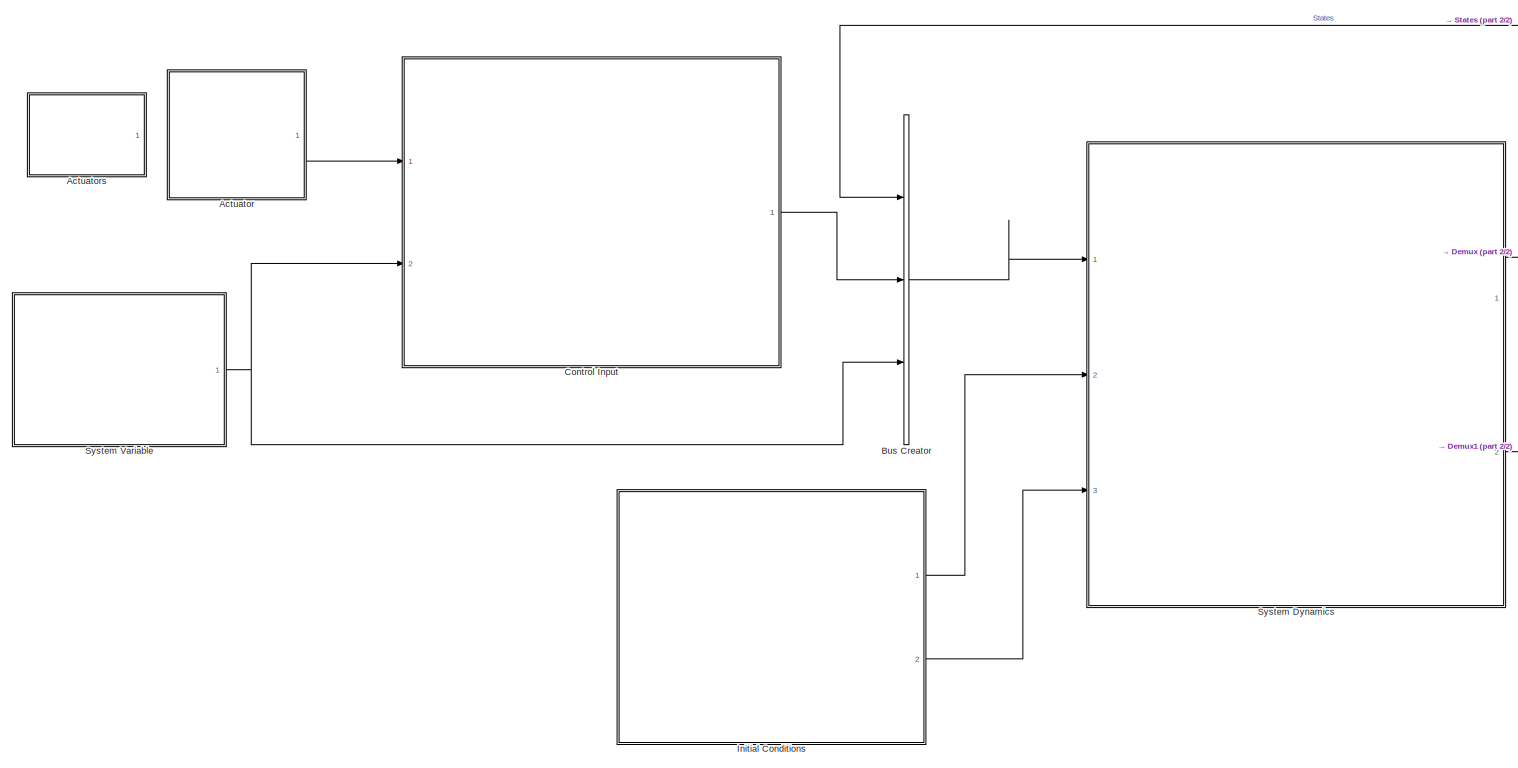
[diagram: root canvas - part 1/2, most of the canvas]
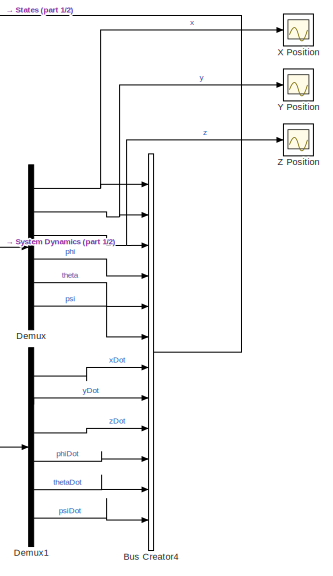
[diagram: root canvas - part 2/2, middle right region]
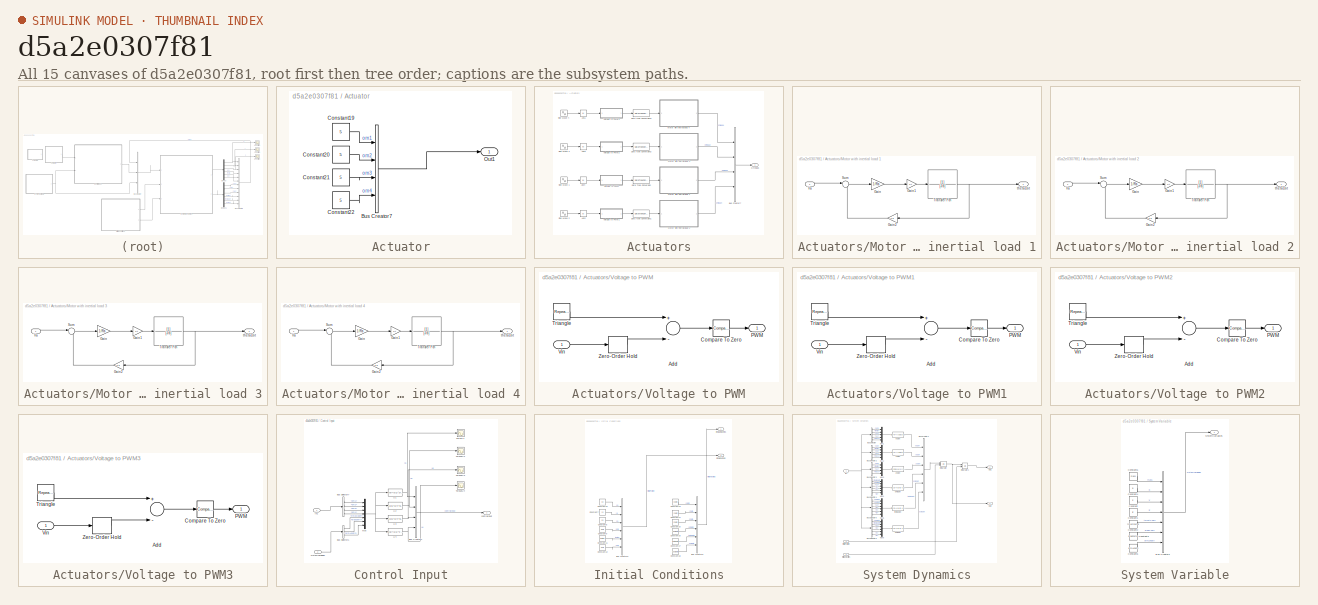
[diagram: thumbnail index - all 15 canvases of the model, root first then tree order]
MODEL slx_d5a2e0307f81
KIND model
CONFIG AbsTol = auto
CONFIG EnableMultiTasking = off
CONFIG FixedStep = auto
CONFIG MaxStep = auto
CONFIG MinStep = auto
CONFIG RelTol = 1e-3
CONFIG SampleTimeConstraint = Unconstrained
CONFIG Solver = VariableStepAuto
CONFIG SolverName = VariableStepAuto
CONFIG StartTime = 0.0
CONFIG StopTime = 5.0
BLOCK [SubSystem] Actuator
  Ports = [0, 1]
  RequestExecContextInheritance = off
BLOCK [BusCreator] Actuator/Bus Creator7
  DisplayOption = bar
  InheritFromInputs = on
  Inputs = 4
  Ports = [4, 1]
BLOCK [Constant] Actuator/Constant19
  Value = 5
BLOCK [Constant] Actuator/Constant20
  Value = 5
BLOCK [Constant] Actuator/Constant21
  Value = 5
BLOCK [Constant] Actuator/Constant22
  Value = 5
BLOCK [Outport] Actuator/Out1
  IconDisplay = Port number
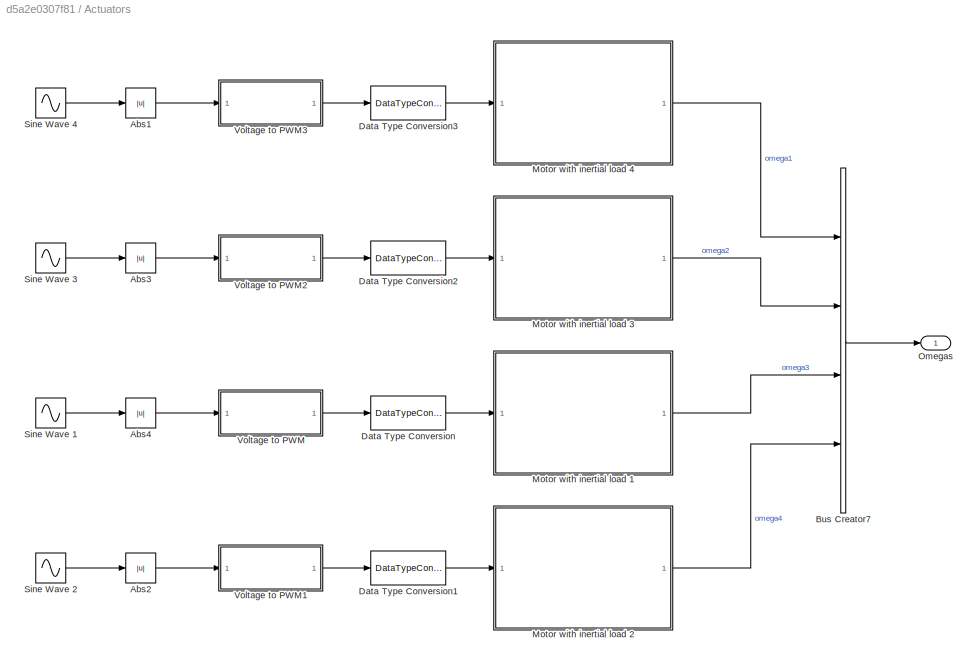
BLOCK [SubSystem] Actuators
  Commented = on
  Ports = [0, 1]
  RequestExecContextInheritance = off
BLOCK [Abs] Actuators/Abs1
  SaturateOnIntegerOverflow = off
BLOCK [Abs] Actuators/Abs2
  SaturateOnIntegerOverflow = off
BLOCK [Abs] Actuators/Abs3
  SaturateOnIntegerOverflow = off
BLOCK [Abs] Actuators/Abs4
  SaturateOnIntegerOverflow = off
BLOCK [BusCreator] Actuators/Bus Creator7
  DisplayOption = bar
  InheritFromInputs = on
  Inputs = 4
  Ports = [4, 1]
BLOCK [DataTypeConversion] Actuators/Data Type Conversion
  OutDataTypeStr = double
  RndMeth = Floor
  SaturateOnIntegerOverflow = off
BLOCK [DataTypeConversion] Actuators/Data Type Conversion1
  OutDataTypeStr = double
  RndMeth = Floor
  SaturateOnIntegerOverflow = off
BLOCK [DataTypeConversion] Actuators/Data Type Conversion2
  OutDataTypeStr = double
  RndMeth = Floor
  SaturateOnIntegerOverflow = off
BLOCK [DataTypeConversion] Actuators/Data Type Conversion3
  OutDataTypeStr = double
  RndMeth = Floor
  SaturateOnIntegerOverflow = off
BLOCK [SubSystem] Actuators/Motor with inertial load 1
  Ports = [1, 1]
  RequestExecContextInheritance = off
BLOCK [Gain] Actuators/Motor with inertial load 1/Gain
  Gain = 1/Ra
  OutDataTypeStr = Inherit: Inherit via internal rule
  ParamDataTypeStr = Inherit: Inherit via internal rule
  SaturateOnIntegerOverflow = off
BLOCK [Gain] Actuators/Motor with inertial load 1/Gain1
  Gain = Kt
  OutDataTypeStr = Inherit: Inherit via internal rule
  ParamDataTypeStr = Inherit: Inherit via internal rule
  SaturateOnIntegerOverflow = off
BLOCK [Gain] Actuators/Motor with inertial load 1/Gain2
  Gain = Ke
  OutDataTypeStr = Inherit: Inherit via internal rule
  ParamDataTypeStr = Inherit: Inherit via internal rule
  SaturateOnIntegerOverflow = off
BLOCK [Sum] Actuators/Motor with inertial load 1/Sum
  IconShape = round
  InputSameDT = off
  Inputs = |+-
  OutDataTypeStr = Inherit: Inherit via internal rule
  Ports = [2, 1]
  SaturateOnIntegerOverflow = off
BLOCK [TransferFcn] Actuators/Motor with inertial load 1/Transfer Fcn
  Denominator = [J b]
BLOCK [Inport] Actuators/Motor with inertial load 1/Va
  IconDisplay = Port number
BLOCK [Outport] Actuators/Motor with inertial load 1/thetaDot
  IconDisplay = Port number
BLOCK [SubSystem] Actuators/Motor with inertial load 2
  Ports = [1, 1]
  RequestExecContextInheritance = off
BLOCK [Gain] Actuators/Motor with inertial load 2/Gain
  Gain = 1/Ra
  OutDataTypeStr = Inherit: Inherit via internal rule
  ParamDataTypeStr = Inherit: Inherit via internal rule
  SaturateOnIntegerOverflow = off
BLOCK [Gain] Actuators/Motor with inertial load 2/Gain1
  Gain = Kt
  OutDataTypeStr = Inherit: Inherit via internal rule
  ParamDataTypeStr = Inherit: Inherit via internal rule
  SaturateOnIntegerOverflow = off
BLOCK [Gain] Actuators/Motor with inertial load 2/Gain2
  Gain = Ke
  OutDataTypeStr = Inherit: Inherit via internal rule
  ParamDataTypeStr = Inherit: Inherit via internal rule
  SaturateOnIntegerOverflow = off
BLOCK [Sum] Actuators/Motor with inertial load 2/Sum
  IconShape = round
  InputSameDT = off
  Inputs = |+-
  OutDataTypeStr = Inherit: Inherit via internal rule
  Ports = [2, 1]
  SaturateOnIntegerOverflow = off
BLOCK [TransferFcn] Actuators/Motor with inertial load 2/Transfer Fcn
  Denominator = [J b]
BLOCK [Inport] Actuators/Motor with inertial load 2/Va
  IconDisplay = Port number
BLOCK [Outport] Actuators/Motor with inertial load 2/thetaDot
  IconDisplay = Port number
BLOCK [SubSystem] Actuators/Motor with inertial load 3
  Ports = [1, 1]
  RequestExecContextInheritance = off
BLOCK [Gain] Actuators/Motor with inertial load 3/Gain
  Gain = 1/Ra
  OutDataTypeStr = Inherit: Inherit via internal rule
  ParamDataTypeStr = Inherit: Inherit via internal rule
  SaturateOnIntegerOverflow = off
BLOCK [Gain] Actuators/Motor with inertial load 3/Gain1
  Gain = Kt
  OutDataTypeStr = Inherit: Inherit via internal rule
  ParamDataTypeStr = Inherit: Inherit via internal rule
  SaturateOnIntegerOverflow = off
BLOCK [Gain] Actuators/Motor with inertial load 3/Gain2
  Gain = Ke
  OutDataTypeStr = Inherit: Inherit via internal rule
  ParamDataTypeStr = Inherit: Inherit via internal rule
  SaturateOnIntegerOverflow = off
BLOCK [Sum] Actuators/Motor with inertial load 3/Sum
  IconShape = round
  InputSameDT = off
  Inputs = |+-
  OutDataTypeStr = Inherit: Inherit via internal rule
  Ports = [2, 1]
  SaturateOnIntegerOverflow = off
BLOCK [TransferFcn] Actuators/Motor with inertial load 3/Transfer Fcn
  Denominator = [J b]
BLOCK [Inport] Actuators/Motor with inertial load 3/Va
  IconDisplay = Port number
BLOCK [Outport] Actuators/Motor with inertial load 3/thetaDot
  IconDisplay = Port number
BLOCK [SubSystem] Actuators/Motor with inertial load 4
  Ports = [1, 1]
  RequestExecContextInheritance = off
BLOCK [Gain] Actuators/Motor with inertial load 4/Gain
  Gain = 1/Ra
  OutDataTypeStr = Inherit: Inherit via internal rule
  ParamDataTypeStr = Inherit: Inherit via internal rule
  SaturateOnIntegerOverflow = off
BLOCK [Gain] Actuators/Motor with inertial load 4/Gain1
  Gain = Kt
  OutDataTypeStr = Inherit: Inherit via internal rule
  ParamDataTypeStr = Inherit: Inherit via internal rule
  SaturateOnIntegerOverflow = off
BLOCK [Gain] Actuators/Motor with inertial load 4/Gain2
  Gain = Ke
  OutDataTypeStr = Inherit: Inherit via internal rule
  ParamDataTypeStr = Inherit: Inherit via internal rule
  SaturateOnIntegerOverflow = off
BLOCK [Sum] Actuators/Motor with inertial load 4/Sum
  IconShape = round
  InputSameDT = off
  Inputs = |+-
  OutDataTypeStr = Inherit: Inherit via internal rule
  Ports = [2, 1]
  SaturateOnIntegerOverflow = off
BLOCK [TransferFcn] Actuators/Motor with inertial load 4/Transfer Fcn
  Denominator = [J b]
BLOCK [Inport] Actuators/Motor with inertial load 4/Va
  IconDisplay = Port number
BLOCK [Outport] Actuators/Motor with inertial load 4/thetaDot
  IconDisplay = Port number
BLOCK [Outport] Actuators/Omegas
  IconDisplay = Port number
BLOCK [Sin] Actuators/Sine Wave 1
  Amplitude = 500
  Frequency = 50
  Ports = [0, 1]
  SampleTime = 0
BLOCK [Sin] Actuators/Sine Wave 2
  Amplitude = 500
  Frequency = 50
  Ports = [0, 1]
  SampleTime = 0
BLOCK [Sin] Actuators/Sine Wave 3
  Amplitude = 500
  Frequency = 50
  Ports = [0, 1]
  SampleTime = 0
BLOCK [Sin] Actuators/Sine Wave 4
  Amplitude = 500
  Frequency = 50
  Ports = [0, 1]
  SampleTime = 0
BLOCK [SubSystem] Actuators/Voltage to PWM
  Ports = [1, 1]
  RequestExecContextInheritance = off
BLOCK [Sum] Actuators/Voltage to PWM/Add
  InputSameDT = off
  Inputs = +-
  OutDataTypeStr = Inherit: Inherit via internal rule
  Ports = [2, 1]
  SampleTime = 1/10000
  SaturateOnIntegerOverflow = off
BLOCK [Reference] Actuators/Voltage to PWM/Compare To Zero  REF=simulink/Logic and Bit
Operations/Compare
To Zero
  Ports = [1, 1]
  SourceBlock = simulink/Logic and Bit\nOperations/Compare\nTo Zero
  SourceProductBaseCode = SL
  SourceProductName = Simulink
  SourceType = Compare To Zero
BLOCK [Outport] Actuators/Voltage to PWM/PWM
  IconDisplay = Port number
BLOCK [Reference] Actuators/Voltage to PWM/Triangle  REF=simulink/Sources/Repeating
Sequence
  Ports = [0, 1]
  SourceBlock = simulink/Sources/Repeating\nSequence
  SourceProductBaseCode = SL
  SourceProductName = Simulink
  SourceType = Repeating table
BLOCK [Inport] Actuators/Voltage to PWM/Vin
  IconDisplay = Port number
BLOCK [ZeroOrderHold] Actuators/Voltage to PWM/Zero-Order Hold
  SampleTime = 1/10000
BLOCK [SubSystem] Actuators/Voltage to PWM1
  Ports = [1, 1]
  RequestExecContextInheritance = off
BLOCK [Sum] Actuators/Voltage to PWM1/Add
  InputSameDT = off
  Inputs = +-
  OutDataTypeStr = Inherit: Inherit via internal rule
  Ports = [2, 1]
  SampleTime = 1/10000
  SaturateOnIntegerOverflow = off
BLOCK [Reference] Actuators/Voltage to PWM1/Compare To Zero  REF=simulink/Logic and Bit
Operations/Compare
To Zero
  Ports = [1, 1]
  SourceBlock = simulink/Logic and Bit\nOperations/Compare\nTo Zero
  SourceProductBaseCode = SL
  SourceProductName = Simulink
  SourceType = Compare To Zero
BLOCK [Outport] Actuators/Voltage to PWM1/PWM
  IconDisplay = Port number
BLOCK [Reference] Actuators/Voltage to PWM1/Triangle  REF=simulink/Sources/Repeating
Sequence
  Ports = [0, 1]
  SourceBlock = simulink/Sources/Repeating\nSequence
  SourceProductBaseCode = SL
  SourceProductName = Simulink
  SourceType = Repeating table
BLOCK [Inport] Actuators/Voltage to PWM1/Vin
  IconDisplay = Port number
BLOCK [ZeroOrderHold] Actuators/Voltage to PWM1/Zero-Order Hold
  SampleTime = 1/10000
BLOCK [SubSystem] Actuators/Voltage to PWM2
  Ports = [1, 1]
  RequestExecContextInheritance = off
BLOCK [Sum] Actuators/Voltage to PWM2/Add
  InputSameDT = off
  Inputs = +-
  OutDataTypeStr = Inherit: Inherit via internal rule
  Ports = [2, 1]
  SampleTime = 1/10000
  SaturateOnIntegerOverflow = off
BLOCK [Reference] Actuators/Voltage to PWM2/Compare To Zero  REF=simulink/Logic and Bit
Operations/Compare
To Zero
  Ports = [1, 1]
  SourceBlock = simulink/Logic and Bit\nOperations/Compare\nTo Zero
  SourceProductBaseCode = SL
  SourceProductName = Simulink
  SourceType = Compare To Zero
BLOCK [Outport] Actuators/Voltage to PWM2/PWM
  IconDisplay = Port number
BLOCK [Reference] Actuators/Voltage to PWM2/Triangle  REF=simulink/Sources/Repeating
Sequence
  Ports = [0, 1]
  SourceBlock = simulink/Sources/Repeating\nSequence
  SourceProductBaseCode = SL
  SourceProductName = Simulink
  SourceType = Repeating table
BLOCK [Inport] Actuators/Voltage to PWM2/Vin
  IconDisplay = Port number
BLOCK [ZeroOrderHold] Actuators/Voltage to PWM2/Zero-Order Hold
  SampleTime = 1/10000
BLOCK [SubSystem] Actuators/Voltage to PWM3
  Ports = [1, 1]
  RequestExecContextInheritance = off
BLOCK [Sum] Actuators/Voltage to PWM3/Add
  InputSameDT = off
  Inputs = +-
  OutDataTypeStr = Inherit: Inherit via internal rule
  Ports = [2, 1]
  SampleTime = 1/10000
  SaturateOnIntegerOverflow = off
BLOCK [Reference] Actuators/Voltage to PWM3/Compare To Zero  REF=simulink/Logic and Bit
Operations/Compare
To Zero
  Ports = [1, 1]
  SourceBlock = simulink/Logic and Bit\nOperations/Compare\nTo Zero
  SourceProductBaseCode = SL
  SourceProductName = Simulink
  SourceType = Compare To Zero
BLOCK [Outport] Actuators/Voltage to PWM3/PWM
  IconDisplay = Port number
BLOCK [Reference] Actuators/Voltage to PWM3/Triangle  REF=simulink/Sources/Repeating
Sequence
  Ports = [0, 1]
  SourceBlock = simulink/Sources/Repeating\nSequence
  SourceProductBaseCode = SL
  SourceProductName = Simulink
  SourceType = Repeating table
BLOCK [Inport] Actuators/Voltage to PWM3/Vin
  IconDisplay = Port number
BLOCK [ZeroOrderHold] Actuators/Voltage to PWM3/Zero-Order Hold
  SampleTime = 1/10000
BLOCK [BusCreator] Bus Creator
  DisplayOption = bar
  InheritFromInputs = on
  Inputs = 3
  Ports = [3, 1]
BLOCK [BusCreator] Bus Creator4
  DisplayOption = bar
  InheritFromInputs = on
  Inputs = 12
  Ports = [12, 1]
BLOCK [SubSystem] Control Input
  Ports = [2, 1]
  RequestExecContextInheritance = off
BLOCK [BusCreator] Control Input/Bus Creator1
  DisplayOption = bar
  InheritFromInputs = on
  Inputs = 4
  Ports = [4, 1]
BLOCK [BusSelector] Control Input/Bus Selector1
  OutputAsBus = off
  OutputSignals = thrustCoeff,dragCoeff,armLength
  Ports = [1, 3]
BLOCK [BusSelector] Control Input/Bus Selector7
  OutputAsBus = off
  OutputSignals = om1,om2,om3,om4
  Ports = [1, 4]
BLOCK [Scope] Control Input/ForceU1
  Floating = off
  NumInputPorts = 1
  Ports = [1]
  ScopeSpecificationString = Simulink.scopes.TimeScopeBlockCfg('CurrentConfiguration', extmgr.ConfigurationSet(extmgr.Configuration('Core','General UI',true),extmgr.Configuration('Core','Source UI',true),extmgr.Configuration('Sources','WiredSimulink',true,'DataLoggingVariableName','ScopeData4'),extmgr.Configuration('Visuals','Time Domain',true,'SerializedDisplays',{struct('MinYLimReal','9.00000','MaxYLimReal','11.00000','YLab...<+1392ch>
BLOCK [Inport] Control Input/In1
  IconDisplay = Port number
BLOCK [Mux] Control Input/Mux
  DisplayOption = bar
  Inputs = 7
  Ports = [7, 1]
BLOCK [Scope] Control Input/TorqueU2
  Floating = off
  NumInputPorts = 1
  Ports = [1]
  ScopeSpecificationString = Simulink.scopes.TimeScopeBlockCfg('CurrentConfiguration', extmgr.ConfigurationSet(extmgr.Configuration('Core','General UI',true),extmgr.Configuration('Core','Source UI',true),extmgr.Configuration('Sources','WiredSimulink',true,'DataLoggingVariableName','ScopeData7'),extmgr.Configuration('Visuals','Time Domain',true,'SerializedDisplays',{struct('MinYLimReal','-1.00000','MaxYLimReal','1.00000','YLab...<+1390ch>
BLOCK [Scope] Control Input/TorqueU3
  Floating = off
  NumInputPorts = 1
  Ports = [1]
  ScopeSpecificationString = Simulink.scopes.TimeScopeBlockCfg('CurrentConfiguration', extmgr.ConfigurationSet(extmgr.Configuration('Core','General UI',true),extmgr.Configuration('Core','Source UI',true),extmgr.Configuration('Sources','WiredSimulink',true,'DataLoggingVariableName','ScopeData5'),extmgr.Configuration('Visuals','Time Domain',true,'SerializedDisplays',{struct('MinYLimReal','-1.00000','MaxYLimReal','1.00000','YLab...<+1361ch>
BLOCK [Scope] Control Input/TorqueU4
  Floating = off
  NumInputPorts = 1
  Ports = [1]
  ScopeSpecificationString = Simulink.scopes.TimeScopeBlockCfg('CurrentConfiguration', extmgr.ConfigurationSet(extmgr.Configuration('Core','General UI',true),extmgr.Configuration('Core','Source UI',true),extmgr.Configuration('Sources','WiredSimulink',true,'DataLoggingVariableName','ScopeData6'),extmgr.Configuration('Visuals','Time Domain',true,'SerializedDisplays',{struct('MinYLimReal','-1.00000','MaxYLimReal','1.00000','YLab...<+1361ch>
BLOCK [Fcn] Control Input/U1
  Expr = u(5)*(u(1)^2+u(2)^2+u(3)^2+u(4)^2)
BLOCK [Fcn] Control Input/U2
  Expr = (u(5)*u(7)*sin(pi/4))*(u(1)^2+u(2)^2-u(3)^2-u(4)^2)
BLOCK [Fcn] Control Input/U3
  Expr = (u(5)*u(7)*sin(pi/4))*(u(1)^2-u(2)^2-u(3)^2+u(4)^2)
BLOCK [Fcn] Control Input/U4
  Expr = u(6)*(u(1)^2-u(2)^2+u(3)^2-u(4)^2)
BLOCK [Outport] Control Input/controlInput
  IconDisplay = Port number
BLOCK [Inport] Control Input/systemVariables
  IconDisplay = Port number
  Port = 2
BLOCK [Demux] Demux
  DisplayOption = bar
  Outputs = 6
  Ports = [1, 6]
BLOCK [Demux] Demux1
  DisplayOption = bar
  Outputs = 6
  Ports = [1, 6]
BLOCK [SubSystem] Initial Conditions
  Ports = [0, 2]
  RequestExecContextInheritance = off
BLOCK [BusCreator] Initial Conditions/Bus Creator5
  DisplayOption = bar
  InheritFromInputs = on
  Inputs = 6
  Ports = [6, 1]
BLOCK [BusCreator] Initial Conditions/Bus Creator6
  DisplayOption = bar
  InheritFromInputs = on
  Inputs = 6
  Ports = [6, 1]
BLOCK [Constant] Initial Conditions/Constant10
  Value = x0
BLOCK [Constant] Initial Conditions/Constant11
  Value = theta0
BLOCK [Constant] Initial Conditions/Constant12
  Value = psi0
BLOCK [Constant] Initial Conditions/Constant13
  Value = xDot0
BLOCK [Constant] Initial Conditions/Constant14
  Value = yDot0
BLOCK [Constant] Initial Conditions/Constant15
  Value = zDot0
BLOCK [Constant] Initial Conditions/Constant16
  Value = phiDot0
BLOCK [Constant] Initial Conditions/Constant17
  Value = thetaDot0
BLOCK [Constant] Initial Conditions/Constant18
  Value = psiDot0
BLOCK [Constant] Initial Conditions/Constant7
  Value = y0
BLOCK [Constant] Initial Conditions/Constant8
  Value = z0
BLOCK [Constant] Initial Conditions/Constant9
  Value = phi0
BLOCK [Outport] Initial Conditions/initialPosition
  IconDisplay = Port number
  Port = 2
BLOCK [Outport] Initial Conditions/initialVelocities
  IconDisplay = Port number
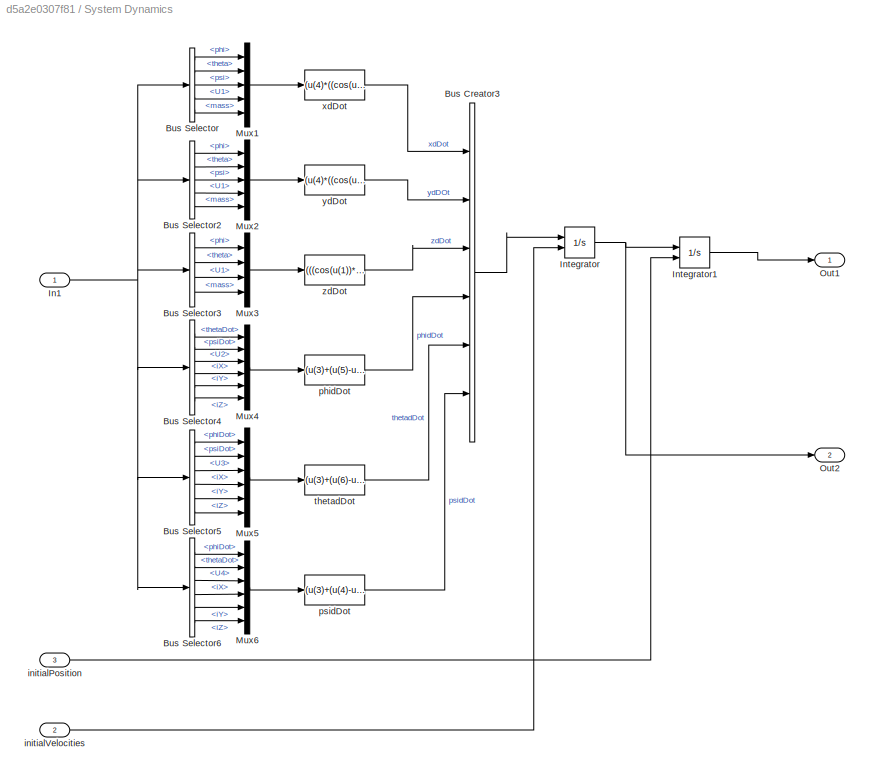
BLOCK [SubSystem] System Dynamics
  Ports = [3, 2]
  RequestExecContextInheritance = off
BLOCK [BusCreator] System Dynamics/Bus Creator3
  DisplayOption = bar
  InheritFromInputs = on
  Inputs = 6
  Ports = [6, 1]
BLOCK [BusSelector] System Dynamics/Bus Selector
  OutputAsBus = off
  OutputSignals = States.phi,States.theta,States.psi,controlInput.U1,systemVariables.mass
  Ports = [1, 5]
BLOCK [BusSelector] System Dynamics/Bus Selector2
  OutputAsBus = off
  OutputSignals = States.phi,States.theta,States.psi,controlInput.U1,systemVariables.mass
  Ports = [1, 5]
BLOCK [BusSelector] System Dynamics/Bus Selector3
  OutputAsBus = off
  OutputSignals = States.phi,States.theta,controlInput.U1,systemVariables.mass
  Ports = [1, 4]
BLOCK [BusSelector] System Dynamics/Bus Selector4
  OutputAsBus = off
  OutputSignals = States.thetaDot,States.psiDot,controlInput.U2,systemVariables.iX,systemVariables.iY,systemVariables.iZ
  Ports = [1, 6]
BLOCK [BusSelector] System Dynamics/Bus Selector5
  OutputAsBus = off
  OutputSignals = States.phiDot,States.psiDot,controlInput.U3,systemVariables.iX,systemVariables.iY,systemVariables.iZ
  Ports = [1, 6]
BLOCK [BusSelector] System Dynamics/Bus Selector6
  OutputAsBus = off
  OutputSignals = States.phiDot,States.thetaDot,controlInput.U4,systemVariables.iX,systemVariables.iY,systemVariables.iZ
  Ports = [1, 6]
BLOCK [Inport] System Dynamics/In1
  IconDisplay = Port number
BLOCK [Integrator] System Dynamics/Integrator
  InitialConditionSource = external
  Ports = [2, 1]
BLOCK [Integrator] System Dynamics/Integrator1
  InitialConditionSource = external
  Ports = [2, 1]
BLOCK [Mux] System Dynamics/Mux1
  DisplayOption = bar
  Inputs = 5
  Ports = [5, 1]
BLOCK [Mux] System Dynamics/Mux2
  DisplayOption = bar
  Inputs = 5
  Ports = [5, 1]
BLOCK [Mux] System Dynamics/Mux3
  DisplayOption = bar
  Ports = [4, 1]
BLOCK [Mux] System Dynamics/Mux4
  DisplayOption = bar
  Inputs = 6
  Ports = [6, 1]
BLOCK [Mux] System Dynamics/Mux5
  DisplayOption = bar
  Inputs = 6
  Ports = [6, 1]
BLOCK [Mux] System Dynamics/Mux6
  DisplayOption = bar
  Inputs = 6
  Ports = [6, 1]
BLOCK [Outport] System Dynamics/Out1
  IconDisplay = Port number
BLOCK [Outport] System Dynamics/Out2
  IconDisplay = Port number
  Port = 2
BLOCK [Inport] System Dynamics/initialPosition
  IconDisplay = Port number
  Port = 3
BLOCK [Inport] System Dynamics/initialVelocities
  IconDisplay = Port number
  Port = 2
BLOCK [Fcn] System Dynamics/phidDot
  Expr = (u(3)+(u(5)-u(6))*(u(1)*u(2)))/u(4)
BLOCK [Fcn] System Dynamics/psidDot
  Expr = (u(3)+(u(4)-u(5))*(u(1)*u(2)))/u(6)
BLOCK [Fcn] System Dynamics/thetadDot
  Expr = (u(3)+(u(6)-u(4))*(u(1)*u(2)))/u(5)
BLOCK [Fcn] System Dynamics/xdDot
  Expr = (u(4)*((cos(u(1))*sin(u(2))*cos(u(3)))+(sin(u(1))*sin(u(3)))))/u(5)
BLOCK [Fcn] System Dynamics/ydDot
  Expr = (u(4)*((cos(u(1))*sin(u(2))*sin(u(3)))-(sin(u(1))*cos(u(3)))))/u(5)
BLOCK [Fcn] System Dynamics/zdDot
  Expr = (((cos(u(1))*cos(u(2)))*u(3))/u(4))-9.81
BLOCK [SubSystem] System Variable
  Ports = [0, 1]
  RequestExecContextInheritance = off
BLOCK [BusCreator] System Variable/Bus Creator2
  DisplayOption = bar
  InheritFromInputs = on
  Inputs = 7
  Ports = [7, 1]
BLOCK [Constant] System Variable/Constant
  Value = iY
BLOCK [Constant] System Variable/Constant1
  Value = iZ
BLOCK [Constant] System Variable/Constant2
  Value = thrustFactor
BLOCK [Constant] System Variable/Constant3
  Value = dragFactor
BLOCK [Constant] System Variable/Constant4
  Value = iX
BLOCK [Constant] System Variable/Constant5
  Value = armLength
BLOCK [Constant] System Variable/Constant6
  Value = mass
BLOCK [Outport] System Variable/systemVariables
  IconDisplay = Port number
BLOCK [Scope] X Position
  Floating = off
  NumInputPorts = 1
  Ports = [1]
  ScopeSpecificationString = Simulink.scopes.TimeScopeBlockCfg('CurrentConfiguration', extmgr.ConfigurationSet(extmgr.Configuration('Core','General UI',true),extmgr.Configuration('Core','Source UI',true),extmgr.Configuration('Sources','WiredSimulink',true),extmgr.Configuration('Visuals','Time Domain',true,'SerializedDisplays',{struct('MinYLimReal','4.00000','MaxYLimReal','6.00000','YLabelReal','','MinYLimMag','4.00000','MaxYL...<+1348ch>
BLOCK [Scope] Y Position
  Floating = off
  NumInputPorts = 1
  Ports = [1]
  ScopeSpecificationString = Simulink.scopes.TimeScopeBlockCfg('CurrentConfiguration', extmgr.ConfigurationSet(extmgr.Configuration('Core','General UI',true),extmgr.Configuration('Core','Source UI',true),extmgr.Configuration('Sources','WiredSimulink',true,'DataLoggingVariableName','ScopeData1'),extmgr.Configuration('Visuals','Time Domain',true,'SerializedDisplays',{struct('MinYLimReal','4.00000','MaxYLimReal','6.00000','YLabe...<+1358ch>
BLOCK [Scope] Z Position
  Floating = off
  NumInputPorts = 1
  Ports = [1]
  ScopeSpecificationString = Simulink.scopes.TimeScopeBlockCfg('CurrentConfiguration', extmgr.ConfigurationSet(extmgr.Configuration('Core','General UI',true),extmgr.Configuration('Core','Source UI',true),extmgr.Configuration('Sources','WiredSimulink',true,'DataLoggingVariableName','ScopeData2'),extmgr.Configuration('Visuals','Time Domain',true,'SerializedDisplays',{struct('MinYLimReal','-42.79688','MaxYLimReal','435.17188','Y...<+1370ch>
LINE Actuator/Bus Creator7:1 -> Actuator/Out1:1
LINE Actuator/Constant19:1 -> Actuator/Bus Creator7:1
LINE Actuator/Constant20:1 -> Actuator/Bus Creator7:2
LINE Actuator/Constant21:1 -> Actuator/Bus Creator7:3
LINE Actuator/Constant22:1 -> Actuator/Bus Creator7:4
LINE Actuator:1 -> Control Input:1
LINE Actuators/Abs1:1 -> Actuators/Voltage to PWM3:1
LINE Actuators/Abs2:1 -> Actuators/Voltage to PWM1:1
LINE Actuators/Abs3:1 -> Actuators/Voltage to PWM2:1
LINE Actuators/Abs4:1 -> Actuators/Voltage to PWM:1
LINE Actuators/Bus Creator7:1 -> Actuators/Omegas:1
LINE Actuators/Data Type Conversion1:1 -> Actuators/Motor with inertial load 2:1
LINE Actuators/Data Type Conversion2:1 -> Actuators/Motor with inertial load 3:1
LINE Actuators/Data Type Conversion3:1 -> Actuators/Motor with inertial load 4:1
LINE Actuators/Data Type Conversion:1 -> Actuators/Motor with inertial load 1:1
LINE Actuators/Motor with inertial load 1/Gain1:1 -> Actuators/Motor with inertial load 1/Transfer Fcn:1
LINE Actuators/Motor with inertial load 1/Gain2:1 -> Actuators/Motor with inertial load 1/Sum:2
LINE Actuators/Motor with inertial load 1/Gain:1 -> Actuators/Motor with inertial load 1/Gain1:1
LINE Actuators/Motor with inertial load 1/Sum:1 -> Actuators/Motor with inertial load 1/Gain:1
NET Actuators/Motor with inertial load 1/Transfer Fcn:1 -> Actuators/Motor with inertial load 1/Gain2:1, Actuators/Motor with inertial load 1/thetaDot:1
LINE Actuators/Motor with inertial load 1/Va:1 -> Actuators/Motor with inertial load 1/Sum:1
LINE Actuators/Motor with inertial load 1:1 -> Actuators/Bus Creator7:3
LINE Actuators/Motor with inertial load 2/Gain1:1 -> Actuators/Motor with inertial load 2/Transfer Fcn:1
LINE Actuators/Motor with inertial load 2/Gain2:1 -> Actuators/Motor with inertial load 2/Sum:2
LINE Actuators/Motor with inertial load 2/Gain:1 -> Actuators/Motor with inertial load 2/Gain1:1
LINE Actuators/Motor with inertial load 2/Sum:1 -> Actuators/Motor with inertial load 2/Gain:1
NET Actuators/Motor with inertial load 2/Transfer Fcn:1 -> Actuators/Motor with inertial load 2/Gain2:1, Actuators/Motor with inertial load 2/thetaDot:1
LINE Actuators/Motor with inertial load 2/Va:1 -> Actuators/Motor with inertial load 2/Sum:1
LINE Actuators/Motor with inertial load 2:1 -> Actuators/Bus Creator7:4
LINE Actuators/Motor with inertial load 3/Gain1:1 -> Actuators/Motor with inertial load 3/Transfer Fcn:1
LINE Actuators/Motor with inertial load 3/Gain2:1 -> Actuators/Motor with inertial load 3/Sum:2
LINE Actuators/Motor with inertial load 3/Gain:1 -> Actuators/Motor with inertial load 3/Gain1:1
LINE Actuators/Motor with inertial load 3/Sum:1 -> Actuators/Motor with inertial load 3/Gain:1
NET Actuators/Motor with inertial load 3/Transfer Fcn:1 -> Actuators/Motor with inertial load 3/Gain2:1, Actuators/Motor with inertial load 3/thetaDot:1
LINE Actuators/Motor with inertial load 3/Va:1 -> Actuators/Motor with inertial load 3/Sum:1
LINE Actuators/Motor with inertial load 3:1 -> Actuators/Bus Creator7:2
LINE Actuators/Motor with inertial load 4/Gain1:1 -> Actuators/Motor with inertial load 4/Transfer Fcn:1
LINE Actuators/Motor with inertial load 4/Gain2:1 -> Actuators/Motor with inertial load 4/Sum:2
LINE Actuators/Motor with inertial load 4/Gain:1 -> Actuators/Motor with inertial load 4/Gain1:1
LINE Actuators/Motor with inertial load 4/Sum:1 -> Actuators/Motor with inertial load 4/Gain:1
NET Actuators/Motor with inertial load 4/Transfer Fcn:1 -> Actuators/Motor with inertial load 4/Gain2:1, Actuators/Motor with inertial load 4/thetaDot:1
LINE Actuators/Motor with inertial load 4/Va:1 -> Actuators/Motor with inertial load 4/Sum:1
LINE Actuators/Motor with inertial load 4:1 -> Actuators/Bus Creator7:1
LINE Actuators/Sine Wave 1:1 -> Actuators/Abs4:1
LINE Actuators/Sine Wave 2:1 -> Actuators/Abs2:1
LINE Actuators/Sine Wave 3:1 -> Actuators/Abs3:1
LINE Actuators/Sine Wave 4:1 -> Actuators/Abs1:1
LINE Actuators/Voltage to PWM/Add:1 -> Actuators/Voltage to PWM/Compare To Zero:1
LINE Actuators/Voltage to PWM/Compare To Zero:1 -> Actuators/Voltage to PWM/PWM:1
LINE Actuators/Voltage to PWM/Triangle:1 -> Actuators/Voltage to PWM/Add:1
LINE Actuators/Voltage to PWM/Vin:1 -> Actuators/Voltage to PWM/Zero-Order Hold:1
LINE Actuators/Voltage to PWM/Zero-Order Hold:1 -> Actuators/Voltage to PWM/Add:2
LINE Actuators/Voltage to PWM1/Add:1 -> Actuators/Voltage to PWM1/Compare To Zero:1
LINE Actuators/Voltage to PWM1/Compare To Zero:1 -> Actuators/Voltage to PWM1/PWM:1
LINE Actuators/Voltage to PWM1/Triangle:1 -> Actuators/Voltage to PWM1/Add:1
LINE Actuators/Voltage to PWM1/Vin:1 -> Actuators/Voltage to PWM1/Zero-Order Hold:1
LINE Actuators/Voltage to PWM1/Zero-Order Hold:1 -> Actuators/Voltage to PWM1/Add:2
LINE Actuators/Voltage to PWM1:1 -> Actuators/Data Type Conversion1:1
LINE Actuators/Voltage to PWM2/Add:1 -> Actuators/Voltage to PWM2/Compare To Zero:1
LINE Actuators/Voltage to PWM2/Compare To Zero:1 -> Actuators/Voltage to PWM2/PWM:1
LINE Actuators/Voltage to PWM2/Triangle:1 -> Actuators/Voltage to PWM2/Add:1
LINE Actuators/Voltage to PWM2/Vin:1 -> Actuators/Voltage to PWM2/Zero-Order Hold:1
LINE Actuators/Voltage to PWM2/Zero-Order Hold:1 -> Actuators/Voltage to PWM2/Add:2
LINE Actuators/Voltage to PWM2:1 -> Actuators/Data Type Conversion2:1
LINE Actuators/Voltage to PWM3/Add:1 -> Actuators/Voltage to PWM3/Compare To Zero:1
LINE Actuators/Voltage to PWM3/Compare To Zero:1 -> Actuators/Voltage to PWM3/PWM:1
LINE Actuators/Voltage to PWM3/Triangle:1 -> Actuators/Voltage to PWM3/Add:1
LINE Actuators/Voltage to PWM3/Vin:1 -> Actuators/Voltage to PWM3/Zero-Order Hold:1
LINE Actuators/Voltage to PWM3/Zero-Order Hold:1 -> Actuators/Voltage to PWM3/Add:2
LINE Actuators/Voltage to PWM3:1 -> Actuators/Data Type Conversion3:1
LINE Actuators/Voltage to PWM:1 -> Actuators/Data Type Conversion:1
LINE Bus Creator4:1 -> Bus Creator:1
LINE Bus Creator:1 -> System Dynamics:1
LINE Control Input/Bus Creator1:1 -> Control Input/controlInput:1
LINE Control Input/Bus Selector1:1 -> Control Input/Mux:5
LINE Control Input/Bus Selector1:2 -> Control Input/Mux:6
LINE Control Input/Bus Selector1:3 -> Control Input/Mux:7
LINE Control Input/Bus Selector7:1 -> Control Input/Mux:1
LINE Control Input/Bus Selector7:2 -> Control Input/Mux:2
LINE Control Input/Bus Selector7:3 -> Control Input/Mux:3
LINE Control Input/Bus Selector7:4 -> Control Input/Mux:4
LINE Control Input/In1:1 -> Control Input/Bus Selector7:1
NET Control Input/Mux:1 -> Control Input/U1:1, Control Input/U2:1, Control Input/U3:1, Control Input/U4:1
NET Control Input/U1:1 -> Control Input/Bus Creator1:1, Control Input/ForceU1:1
NET Control Input/U2:1 -> Control Input/Bus Creator1:2, Control Input/TorqueU2:1
NET Control Input/U3:1 -> Control Input/Bus Creator1:3, Control Input/TorqueU3:1
NET Control Input/U4:1 -> Control Input/Bus Creator1:4, Control Input/TorqueU4:1
LINE Control Input/systemVariables:1 -> Control Input/Bus Selector1:1
LINE Control Input:1 -> Bus Creator:2
LINE Demux1:1 -> Bus Creator4:7
LINE Demux1:2 -> Bus Creator4:8
LINE Demux1:3 -> Bus Creator4:9
LINE Demux1:4 -> Bus Creator4:10
LINE Demux1:5 -> Bus Creator4:11
LINE Demux1:6 -> Bus Creator4:12
NET Demux:1 -> Bus Creator4:1, X Position:1
NET Demux:2 -> Bus Creator4:2, Y Position:1
NET Demux:3 -> Bus Creator4:3, Z Position:1
LINE Demux:4 -> Bus Creator4:4
LINE Demux:5 -> Bus Creator4:5
LINE Demux:6 -> Bus Creator4:6
LINE Initial Conditions/Bus Creator5:1 -> Initial Conditions/initialPosition:1
LINE Initial Conditions/Bus Creator6:1 -> Initial Conditions/initialVelocities:1
LINE Initial Conditions/Constant10:1 -> Initial Conditions/Bus Creator5:1
LINE Initial Conditions/Constant11:1 -> Initial Conditions/Bus Creator5:5
LINE Initial Conditions/Constant12:1 -> Initial Conditions/Bus Creator5:6
LINE Initial Conditions/Constant13:1 -> Initial Conditions/Bus Creator6:1
LINE Initial Conditions/Constant14:1 -> Initial Conditions/Bus Creator6:2
LINE Initial Conditions/Constant15:1 -> Initial Conditions/Bus Creator6:3
LINE Initial Conditions/Constant16:1 -> Initial Conditions/Bus Creator6:4
LINE Initial Conditions/Constant17:1 -> Initial Conditions/Bus Creator6:5
LINE Initial Conditions/Constant18:1 -> Initial Conditions/Bus Creator6:6
LINE Initial Conditions/Constant7:1 -> Initial Conditions/Bus Creator5:2
LINE Initial Conditions/Constant8:1 -> Initial Conditions/Bus Creator5:3
LINE Initial Conditions/Constant9:1 -> Initial Conditions/Bus Creator5:4
LINE Initial Conditions:1 -> System Dynamics:2
LINE Initial Conditions:2 -> System Dynamics:3
LINE System Dynamics/Bus Creator3:1 -> System Dynamics/Integrator:1
LINE System Dynamics/Bus Selector2:1 -> System Dynamics/Mux2:1
LINE System Dynamics/Bus Selector2:2 -> System Dynamics/Mux2:2
LINE System Dynamics/Bus Selector2:3 -> System Dynamics/Mux2:3
LINE System Dynamics/Bus Selector2:4 -> System Dynamics/Mux2:4
LINE System Dynamics/Bus Selector2:5 -> System Dynamics/Mux2:5
LINE System Dynamics/Bus Selector3:1 -> System Dynamics/Mux3:1
LINE System Dynamics/Bus Selector3:2 -> System Dynamics/Mux3:2
LINE System Dynamics/Bus Selector3:3 -> System Dynamics/Mux3:3
LINE System Dynamics/Bus Selector3:4 -> System Dynamics/Mux3:4
LINE System Dynamics/Bus Selector4:1 -> System Dynamics/Mux4:1
LINE System Dynamics/Bus Selector4:2 -> System Dynamics/Mux4:2
LINE System Dynamics/Bus Selector4:3 -> System Dynamics/Mux4:3
LINE System Dynamics/Bus Selector4:4 -> System Dynamics/Mux4:4
LINE System Dynamics/Bus Selector4:5 -> System Dynamics/Mux4:5
LINE System Dynamics/Bus Selector4:6 -> System Dynamics/Mux4:6
LINE System Dynamics/Bus Selector5:1 -> System Dynamics/Mux5:1
LINE System Dynamics/Bus Selector5:2 -> System Dynamics/Mux5:2
LINE System Dynamics/Bus Selector5:3 -> System Dynamics/Mux5:3
LINE System Dynamics/Bus Selector5:4 -> System Dynamics/Mux5:4
LINE System Dynamics/Bus Selector5:5 -> System Dynamics/Mux5:5
LINE System Dynamics/Bus Selector5:6 -> System Dynamics/Mux5:6
LINE System Dynamics/Bus Selector6:1 -> System Dynamics/Mux6:1
LINE System Dynamics/Bus Selector6:2 -> System Dynamics/Mux6:2
LINE System Dynamics/Bus Selector6:3 -> System Dynamics/Mux6:3
LINE System Dynamics/Bus Selector6:4 -> System Dynamics/Mux6:4
LINE System Dynamics/Bus Selector6:5 -> System Dynamics/Mux6:5
LINE System Dynamics/Bus Selector6:6 -> System Dynamics/Mux6:6
LINE System Dynamics/Bus Selector:1 -> System Dynamics/Mux1:1
LINE System Dynamics/Bus Selector:2 -> System Dynamics/Mux1:2
LINE System Dynamics/Bus Selector:3 -> System Dynamics/Mux1:3
LINE System Dynamics/Bus Selector:4 -> System Dynamics/Mux1:4
LINE System Dynamics/Bus Selector:5 -> System Dynamics/Mux1:5
NET System Dynamics/In1:1 -> System Dynamics/Bus Selector2:1, System Dynamics/Bus Selector3:1, System Dynamics/Bus Selector4:1, System Dynamics/Bus Selector5:1, System Dynamics/Bus Selector6:1, System Dynamics/Bus Selector:1
LINE System Dynamics/Integrator1:1 -> System Dynamics/Out1:1
NET System Dynamics/Integrator:1 -> System Dynamics/Integrator1:1, System Dynamics/Out2:1
LINE System Dynamics/Mux1:1 -> System Dynamics/xdDot:1
LINE System Dynamics/Mux2:1 -> System Dynamics/ydDot:1
LINE System Dynamics/Mux3:1 -> System Dynamics/zdDot:1
LINE System Dynamics/Mux4:1 -> System Dynamics/phidDot:1
LINE System Dynamics/Mux5:1 -> System Dynamics/thetadDot:1
LINE System Dynamics/Mux6:1 -> System Dynamics/psidDot:1
LINE System Dynamics/initialPosition:1 -> System Dynamics/Integrator1:2
LINE System Dynamics/initialVelocities:1 -> System Dynamics/Integrator:2
LINE System Dynamics/phidDot:1 -> System Dynamics/Bus Creator3:4
LINE System Dynamics/psidDot:1 -> System Dynamics/Bus Creator3:6
LINE System Dynamics/thetadDot:1 -> System Dynamics/Bus Creator3:5
LINE System Dynamics/xdDot:1 -> System Dynamics/Bus Creator3:1
LINE System Dynamics/ydDot:1 -> System Dynamics/Bus Creator3:2
LINE System Dynamics/zdDot:1 -> System Dynamics/Bus Creator3:3
LINE System Dynamics:1 -> Demux:1
LINE System Dynamics:2 -> Demux1:1
LINE System Variable/Bus Creator2:1 -> System Variable/systemVariables:1
LINE System Variable/Constant1:1 -> System Variable/Bus Creator2:4
LINE System Variable/Constant2:1 -> System Variable/Bus Creator2:5
LINE System Variable/Constant3:1 -> System Variable/Bus Creator2:6
LINE System Variable/Constant4:1 -> System Variable/Bus Creator2:2
LINE System Variable/Constant5:1 -> System Variable/Bus Creator2:7
LINE System Variable/Constant6:1 -> System Variable/Bus Creator2:1
LINE System Variable/Constant:1 -> System Variable/Bus Creator2:3
NET System Variable:1 -> Bus Creator:3, Control Input:2
note: NET lines group one-source signal fan-out (src -> all destinations, sorted); 1:1 wires keep LINE
